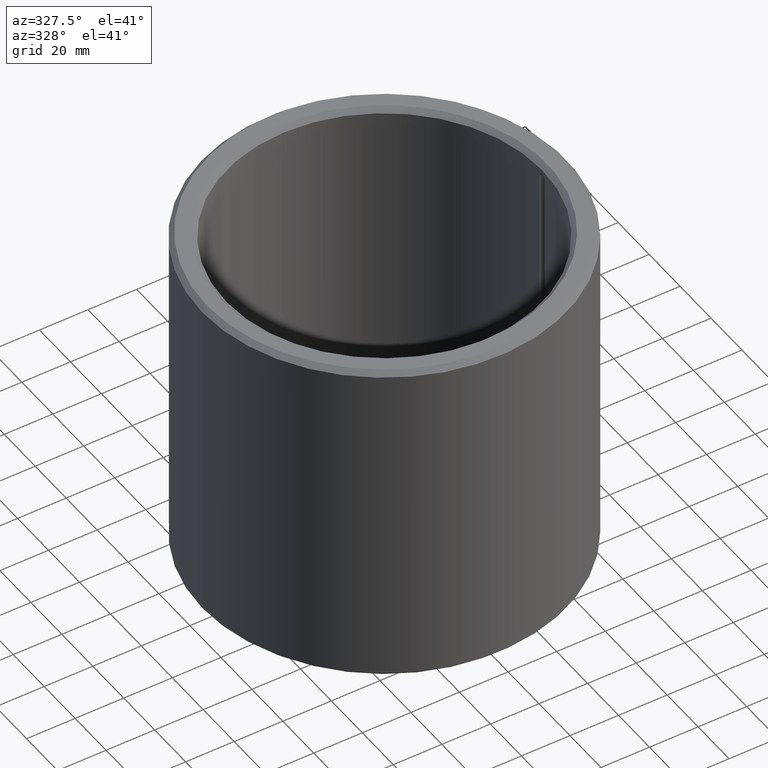
[diagram: clean part render]
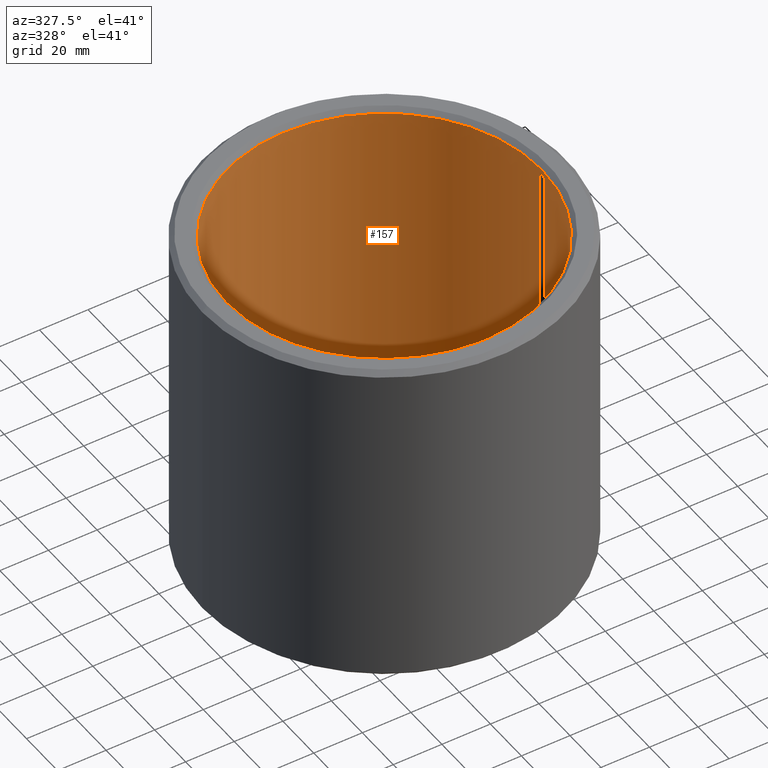
[diagram: same view with one face highlighted and labeled with its STEP entity id]
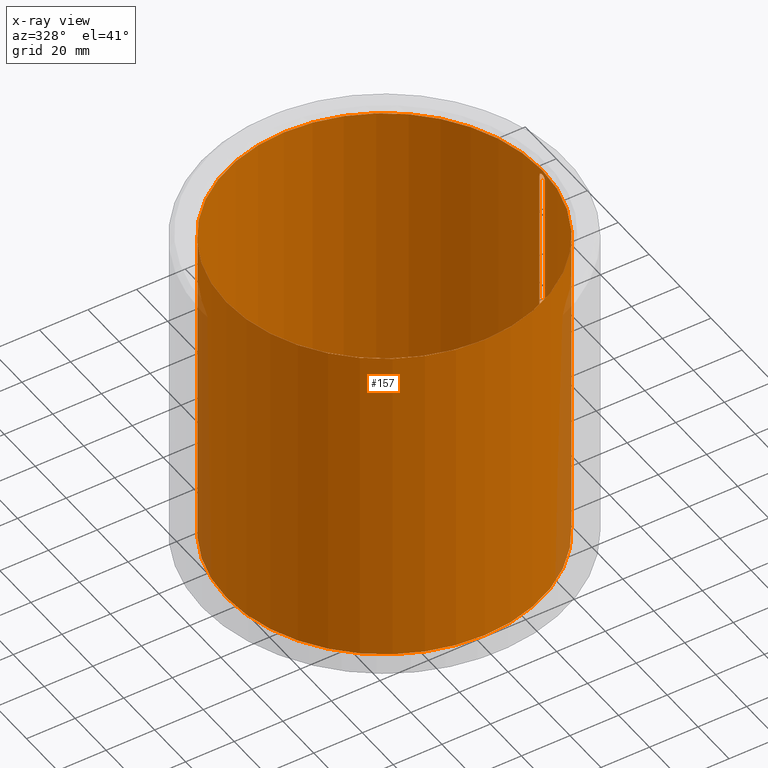
[diagram: x-ray of the same camera — body ghosted, the highlighted face saturated]
A machine part, auxiliary view. The second image highlights one B-rep face of the part: STEP entity #157.
The next image is the same camera in x-ray: the body ghosted, the highlighted face saturated — about 4% of this face is hidden behind the body in this view.
In plain terms, the highlighted cylindrical surface (bore or boss wall) has radius 65 mm, axis along (-0, 0, -1).
Its self-contained STEP definition (entity closure, byte-faithful):
#157=ADVANCED_FACE('',(#176,#177,#178),#179,.F.);
#176=FACE_OUTER_BOUND('',#4061,.T.);
#177=FACE_OUTER_BOUND('',#4062,.T.);
#178=FACE_BOUND('',#4063,.T.);
#179=CYLINDRICAL_SURFACE('',#4064,0.065);
#4061=EDGE_LOOP('',(#7962));
#4062=EDGE_LOOP('',(#7963));
#4063=EDGE_LOOP('',(#7964,#7965,#7966,#7967));
#4064=AXIS2_PLACEMENT_3D('',#7968,#7969,#7970);
#7962=ORIENTED_EDGE('',*,*,#8021,.T.);
#7963=ORIENTED_EDGE('',*,*,#8022,.F.);
#7964=ORIENTED_EDGE('',*,*,#8011,.T.);
#7965=ORIENTED_EDGE('',*,*,#8019,.T.);
#7966=ORIENTED_EDGE('',*,*,#8017,.T.);
#7967=ORIENTED_EDGE('',*,*,#8023,.T.);
#7968=CARTESIAN_POINT('',(0.0,0.0,-1.0842021724855E-019));
#7969=DIRECTION('',(0.0,-6.12323399573677E-017,-1.0));
#7970=DIRECTION('',(0.0,1.0,-6.12323399573677E-017));
#8011=EDGE_CURVE('',#8033,#8031,#8034,.F.);
#8017=EDGE_CURVE('',#8038,#8043,#8045,.T.);
#8019=EDGE_CURVE('',#8031,#8038,#8047,.T.);
#8021=EDGE_CURVE('',#8049,#8049,#8050,.T.);
#8022=EDGE_CURVE('',#8051,#8051,#8052,.T.);
#8023=EDGE_CURVE('',#8043,#8033,#8053,.T.);
#8031=VERTEX_POINT('',#8067);
#8033=VERTEX_POINT('',#8069);
#8034=LINE('',#8070,#8071);
#8038=VERTEX_POINT('',#8076);
#8043=VERTEX_POINT('',#8082);
#8045=LINE('',#8084,#8085);
#8047=B_SPLINE_CURVE_WITH_KNOTS('',3,(#8118,#8119,#8120,#8121,#8122,#8123,#8124,#8125,#8126,#8127,#8128,#8129,#8130,#8131,#8132,#8133,#8134,#8135,#8136,#8137,#8138,#8139,#8140,#8141,#8142,#8143,#8144,#8145,#8146,#8147,#8148,#8149,#8150,#8151,#8152,#8153,#8154,#8155,#8156,#8157,#8158,#8159,#8160,#8161,#8162,#8163,#8164,#8165,#8166,#8167,#8168,#8169,#8170,#8171,#8172,#8173,#8174,#8175,#8176,#8177,#8178,#8179,#8180,#8181,#8182,#8183,#8184,#8185,#8186,#8187,#8188,#8189,#8190,#8191,#8192,#8193,#8194,#8195,#8196,#8197,#8198,#8199,#8200,#8201,#8202,#8203),.UNSPECIFIED.,.F.,.F.,(4,1,1,2,1,2,2,2,1,2,1,2,2,1,1,2,2,2,1,2,1,2,2,2,1,1,1,2,2,2,1,2,1,2,2,2,1,1,1,2,2,1,1,2,1,2,2,2,1,2,1,2,2,4),(0.0,0.000170950541267903,0.000341901082535805,0.000512851623803708,0.000555589259120664,0.000576958076779181,0.000598326894437698,0.000683802165071766,0.000854752706339827,0.00102570324760789,0.00111117851824195,0.00115391615355899,0.00119665378887602,0.00136760433014415,0.00153855487141227,0.0017095054126804,0.00175224304799742,0.00177361186565591,0.0017949806833144,0.0018804559539484,0.00205140649521639,0.00222235703648438,0.00230783230711838,0.00235056994243538,0.00239330757775238,0.00256425811902038,0.00273520866028839,0.0029061592015564,0.0029275280192149,0.0029488968368734,0.00299163447219039,0.0030771097428244,0.00324806028409239,0.00341901082536038,0.00350448609599436,0.00354722373131133,0.0035899613666283,0.00376091190789616,0.00393186244916401,0.00410281299043186,0.00412418180809034,0.00414555062574883,0.00418828826106579,0.00427376353169972,0.00444471407296757,0.00461566461423543,0.00470113988486939,0.00478661515550336,0.00495756569677128,0.00512851623803921,0.00521399150867318,0.0052567291439902,0.00529946677930722,0.0054704173205754),.UNSPECIFIED.);
#8049=VERTEX_POINT('',#8236);
#8050=CIRCLE('',#8237,0.065);
#8051=VERTEX_POINT('',#8238);
#8052=CIRCLE('',#8239,0.065);
#8053=B_SPLINE_CURVE_WITH_KNOTS('',3,(#8240,#8241,#8242,#8243,#8244,#8245,#8246,#8247,#8248,#8249,#8250,#8251,#8252,#8253,#8254,#8255,#8256,#8257,#8258,#8259,#8260,#8261,#8262,#8263,#8264,#8265,#8266,#8267,#8268,#8269,#8270,#8271,#8272,#8273,#8274,#8275,#8276,#8277,#8278,#8279,#8280,#8281,#8282,#8283,#8284,#8285,#8286,#8287,#8288,#8289,#8290,#8291,#8292,#8293,#8294,#8295,#8296,#8297,#8298,#8299,#8300,#8301,#8302,#8303,#8304,#8305,#8306,#8307,#8308,#8309,#8310,#8311,#8312,#8313,#8314,#8315,#8316,#8317,#8318,#8319,#8320,#8321,#8322,#8323,#8324,#8325),.UNSPECIFIED.,.F.,.F.,(4,1,1,2,1,2,2,2,1,2,1,2,2,1,1,2,2,2,1,2,1,2,2,2,1,1,1,2,2,2,1,2,1,2,2,2,1,1,1,2,2,1,1,2,1,2,2,2,1,2,1,2,2,4),(0.0,0.000170950541267997,0.000341901082535994,0.000512851623803992,0.000555589259120992,0.000576958076779491,0.00059832689443799,0.000683802165071988,0.000854752706339985,0.00102570324760798,0.00111117851824198,0.00115391615355898,0.00119665378887598,0.00136760433014397,0.00153855487141196,0.00170950541267995,0.00175224304799694,0.00177361186565544,0.00179498068331394,0.00188045595394794,0.00205140649521593,0.00222235703648392,0.00230783230711791,0.00235056994243491,0.00239330757775191,0.0025642581190199,0.00273520866028789,0.00290615920155587,0.00292752801921437,0.00294889683687287,0.00299163447218987,0.00307710974282386,0.00324806028409185,0.00341901082535984,0.00350448609599384,0.00354722373131084,0.00358996136662783,0.00376091190789582,0.00393186244916381,0.0041028129904318,0.0041241818080903,0.0041455506257488,0.0041882882610658,0.00427376353169979,0.00444471407296779,0.00461566461423578,0.00470113988486978,0.00478661515550377,0.00495756569677177,0.00512851623803976,0.00521399150867376,0.00525672914399076,0.00529946677930776,0.00547041732057575),.UNSPECIFIED.);
#8067=CARTESIAN_POINT('',(0.00175000000000012,-0.0649764380371839,0.13425));
#8069=CARTESIAN_POINT('',(0.00175000000000012,-0.0649764380371839,0.00574999999999992));
#8070=CARTESIAN_POINT('',(0.00175000000000012,-0.0649764380371839,3.87023912586313E-018));
#8071=VECTOR('',#8341,1.0);
#8076=CARTESIAN_POINT('',(-0.0017499999999999,-0.0649764380371839,0.13425));
#8082=CARTESIAN_POINT('',(-0.00174999999999988,-0.0649764380371839,0.00574999999999992));
#8084=CARTESIAN_POINT('',(-0.00174999999999988,-0.0649764380371839,3.66352353655657E-018));
#8085=VECTOR('',#8353,1.0);
#8118=CARTESIAN_POINT('',(0.00175000000000012,-0.0649764380371839,0.13425));
#8119=CARTESIAN_POINT('',(0.00175000000000012,-0.0649764380371839,0.134307804159339));
#8120=CARTESIAN_POINT('',(0.00174428743809363,-0.0649765922552417,0.134422439136629));
#8121=CARTESIAN_POINT('',(0.00171917428364053,-0.0649772636644307,0.134591572710331));
#8122=CARTESIAN_POINT('',(0.00169147204567427,-0.064977990118524,0.134702461046921));
#8123=CARTESIAN_POINT('',(0.00167065513377193,-0.0649785266743504,0.134771169446072));
#8124=CARTESIAN_POINT('',(0.00166414672759982,-0.0649786938291389,0.134791737101696));
#8125=CARTESIAN_POINT('',(0.00165723924504243,-0.0649788701317372,0.134812236767478));
#8126=CARTESIAN_POINT('',(0.00165254503619001,-0.0649789896844806,0.134825888011142));
#8127=CARTESIAN_POINT('',(0.00165015203516632,-0.0649790505022662,0.134832709494912));
#8128=CARTESIAN_POINT('',(0.00163799532301936,-0.0649793587684997,0.134866688605165));
#8129=CARTESIAN_POINT('',(0.00162763716400036,-0.0649796192498494,0.134893521128272));
#8130=CARTESIAN_POINT('',(0.00159470289670722,-0.064980438633818,0.134972987822788));
#8131=CARTESIAN_POINT('',(0.00154584003328627,-0.0649816322581862,0.135076199366304));
#8132=CARTESIAN_POINT('',(0.00148726104018802,-0.0649829905644828,0.135174025726698));
#8133=CARTESIAN_POINT('',(0.00143964697059824,-0.0649840570342171,0.135245356135442));
#8134=CARTESIAN_POINT('',(0.00141491835255628,-0.0649846022016593,0.135280510598014));
#8135=CARTESIAN_POINT('',(0.00138878518364405,-0.0649851625712121,0.135314886696329));
#8136=CARTESIAN_POINT('',(0.00137104734742398,-0.0649855392211552,0.135337629134149));
#8137=CARTESIAN_POINT('',(0.00136201095357335,-0.0649857292785578,0.135348924064095));
#8138=CARTESIAN_POINT('',(0.00131627601218144,-0.0649866813794813,0.135404662046035));
#8139=CARTESIAN_POINT('',(0.00123927067599368,-0.0649882227009657,0.135489542226885));
#8140=CARTESIAN_POINT('',(0.00111262966757342,-0.0649905213887287,0.135604361024964));
#8141=CARTESIAN_POINT('',(0.00102079972565584,-0.0649920014671348,0.135672595222445));
#8142=CARTESIAN_POINT('',(0.000961031010528847,-0.0649928962450574,0.135712575203102));
#8143=CARTESIAN_POINT('',(0.000948958239967099,-0.0649930736845278,0.135720437568068));
#8144=CARTESIAN_POINT('',(0.000930668522969631,-0.064993337299113,0.135732028405953));
#8145=CARTESIAN_POINT('',(0.000924538816368255,-0.0649934247884149,0.135735860042414));
#8146=CARTESIAN_POINT('',(0.000912251787006206,-0.0649935984111313,0.135743435223141));
#8147=CARTESIAN_POINT('',(0.000881448111662868,-0.0649940293283734,0.135762163889215));
#8148=CARTESIAN_POINT('',(0.000850216884515415,-0.0649944441402128,0.135779853328885));
#8149=CARTESIAN_POINT('',(0.000774456150257302,-0.0649954057534464,0.135820349485238));
#8150=CARTESIAN_POINT('',(0.000671296879820094,-0.0649965973664716,0.13586913096906));
#8151=CARTESIAN_POINT('',(0.000563911996975498,-0.0649975768969099,0.135907642790467));
#8152=CARTESIAN_POINT('',(0.000481766951125887,-0.0649982203633862,0.135932622861809));
#8153=CARTESIAN_POINT('',(0.000454117064391369,-0.0649984196532039,0.135940297766891));
#8154=CARTESIAN_POINT('',(0.000412232706031982,-0.0649986942878595,0.135950814924767));
#8155=CARTESIAN_POINT('',(0.000398202120363332,-0.0649987817872864,0.135954154888466));
#8156=CARTESIAN_POINT('',(0.000370006163583729,-0.0649989484084077,0.135960498246551));
#8157=CARTESIAN_POINT('',(0.000299468254483249,-0.0649993423112207,0.135975448623836));
#8158=CARTESIAN_POINT('',(0.000172074641729448,-0.0649998465968027,0.135994315423633));
#8159=CARTESIAN_POINT('',(1.33397341045978E-006,-0.0650000751188021,0.13600278322256));
#8160=CARTESIAN_POINT('',(-0.000113082006801493,-0.0649999269431506,0.135997293364273));
#8161=CARTESIAN_POINT('',(-0.000177611643527828,-0.064999757734262,0.135990978461879));
#8162=CARTESIAN_POINT('',(-0.000184783979187403,-0.0649997377406877,0.135990231876687));
#8163=CARTESIAN_POINT('',(-0.000199133430442034,-0.0649996953635478,0.135988648319955));
#8164=CARTESIAN_POINT('',(-0.000206314028814074,-0.064999672967197,0.135987810869236));
#8165=CARTESIAN_POINT('',(-0.000227805524533115,-0.0649996023828389,0.13598516945163));
#8166=CARTESIAN_POINT('',(-0.000270635998836784,-0.0649994475027369,0.135979365411318));
#8167=CARTESIAN_POINT('',(-0.000313014352686587,-0.0649992523733915,0.135972016305078));
#8168=CARTESIAN_POINT('',(-0.000397178290813525,-0.0649988107410024,0.135955292340063));
#8169=CARTESIAN_POINT('',(-0.000507818925823188,-0.0649980849309796,0.135927601183919));
#8170=CARTESIAN_POINT('',(-0.000615340422131647,-0.0649971088743292,0.135889250056923));
#8171=CARTESIAN_POINT('',(-0.000694791726562403,-0.0649962919397778,0.135856420120254));
#8172=CARTESIAN_POINT('',(-0.000721076839261189,-0.0649960054817231,0.135844797837391));
#8173=CARTESIAN_POINT('',(-0.000760200635025422,-0.0649955557333852,0.135826325785513));
#8174=CARTESIAN_POINT('',(-0.000773203820355024,-0.0649954023132208,0.135819988467953));
#8175=CARTESIAN_POINT('',(-0.000798970539962756,-0.0649950906767697,0.135807033722688));
#8176=CARTESIAN_POINT('',(-0.000862860879895444,-0.0649942987787319,0.135773912433346));
#8177=CARTESIAN_POINT('',(-0.000973195060078891,-0.0649927660094061,0.135707781376536));
#8178=CARTESIAN_POINT('',(-0.0011105872686655,-0.0649905566210504,0.135606045372333));
#8179=CARTESIAN_POINT('',(-0.00119567359744731,-0.0649890147242563,0.135529139921372));
#8180=CARTESIAN_POINT('',(-0.00124164160953185,-0.0649881400888659,0.135483238911064));
#8181=CARTESIAN_POINT('',(-0.00124672498238361,-0.0649880427637438,0.135478099711173));
#8182=CARTESIAN_POINT('',(-0.00125681149956204,-0.064987848481839,0.135467775404929));
#8183=CARTESIAN_POINT('',(-0.00127183017883272,-0.064987557436926,0.135452211008358));
#8184=CARTESIAN_POINT('',(-0.00130610062115463,-0.0649868814282194,0.135415351695388));
#8185=CARTESIAN_POINT('',(-0.00133416416110713,-0.0649863088273954,0.135382838172676));
#8186=CARTESIAN_POINT('',(-0.0013885689759628,-0.064985176711867,0.135316602801425));
#8187=CARTESIAN_POINT('',(-0.0014565239862244,-0.0649837021643201,0.13522507235672));
#8188=CARTESIAN_POINT('',(-0.00151538279762509,-0.0649823387560253,0.1351271594592));
#8189=CARTESIAN_POINT('',(-0.00155604392506773,-0.0649813735705071,0.135051280686345));
#8190=CARTESIAN_POINT('',(-0.00156901798788923,-0.0649810613626072,0.135025575694947));
#8191=CARTESIAN_POINT('',(-0.00159377008135847,-0.0649804589871833,0.134973347795102));
#8192=CARTESIAN_POINT('',(-0.00160544773072877,-0.0649801712719156,0.13494703720537));
#8193=CARTESIAN_POINT('',(-0.00163842983379581,-0.0649793508081919,0.134867527980593));
#8194=CARTESIAN_POINT('',(-0.00167694696870958,-0.06497837071468,0.134759978590079));
#8195=CARTESIAN_POINT('',(-0.00170476748346969,-0.064977641490491,0.134649417153528));
#8196=CARTESIAN_POINT('',(-0.00172158834806623,-0.0649771972696551,0.13456535712868));
#8197=CARTESIAN_POINT('',(-0.00172898586286726,-0.0649770008347132,0.134523041876456));
#8198=CARTESIAN_POINT('',(-0.00173484094036978,-0.0649768445684816,0.134480292262785));
#8199=CARTESIAN_POINT('',(-0.00173839776005141,-0.0649767495062107,0.134451694924403));
#8200=CARTESIAN_POINT('',(-0.00174000413889888,-0.0649767065003808,0.134437334701522));
#8201=CARTESIAN_POINT('',(-0.00174714302346269,-0.0649765151719892,0.134365457161068));
#8202=CARTESIAN_POINT('',(-0.0017499999999999,-0.0649764380371839,0.1343078041473));
#8203=CARTESIAN_POINT('',(-0.0017499999999999,-0.0649764380371839,0.13425));
#8236=CARTESIAN_POINT('',(0.0,0.065,0.002));
#8237=AXIS2_PLACEMENT_3D('',#8354,#8355,#8356);
#8238=CARTESIAN_POINT('',(0.0,0.065,0.138));
#8239=AXIS2_PLACEMENT_3D('',#8357,#8358,#8359);
#8240=CARTESIAN_POINT('',(-0.00174999999999988,-0.0649764380371839,0.00574999999999992));
#8241=CARTESIAN_POINT('',(-0.00174999999999989,-0.0649764380371839,0.00569219584066064));
#8242=CARTESIAN_POINT('',(-0.00174428743809343,-0.0649765922552417,0.0055775608633707));
#8243=CARTESIAN_POINT('',(-0.00171917428364035,-0.0649772636644307,0.00540842728966926));
#8244=CARTESIAN_POINT('',(-0.0016914720456741,-0.064977990118524,0.00529753895307839));
#8245=CARTESIAN_POINT('',(-0.00167065513377177,-0.0649785266743504,0.00522883055392761));
#8246=CARTESIAN_POINT('',(-0.00166414672759966,-0.0649786938291389,0.00520826289830435));
#8247=CARTESIAN_POINT('',(-0.00165723924504227,-0.0649788701317372,0.00518776323252184));
#8248=CARTESIAN_POINT('',(-0.00165254503618985,-0.0649789896844806,0.0051741119888582));
#8249=CARTESIAN_POINT('',(-0.00165015203516616,-0.0649790505022662,0.00516729050508823));
#8250=CARTESIAN_POINT('',(-0.0016379953230192,-0.0649793587684997,0.00513331139483454));
#8251=CARTESIAN_POINT('',(-0.0016276371640002,-0.0649796192498495,0.00510647887172832));
#8252=CARTESIAN_POINT('',(-0.00159470289670707,-0.064980438633818,0.00502701217721135));
#8253=CARTESIAN_POINT('',(-0.00154583992791787,-0.0649816322881522,0.00492380069245907));
#8254=CARTESIAN_POINT('',(-0.00148726104018787,-0.0649829905644829,0.00482597427330222));
#8255=CARTESIAN_POINT('',(-0.0014396469705981,-0.0649840570342171,0.00475464386455751));
#8256=CARTESIAN_POINT('',(-0.00141491835255614,-0.0649846022016593,0.00471948940198536));
#8257=CARTESIAN_POINT('',(-0.00138878518364393,-0.0649851625712121,0.00468511330367057));
#8258=CARTESIAN_POINT('',(-0.00137104734742386,-0.0649855392211552,0.00466237086585071));
#8259=CARTESIAN_POINT('',(-0.00136201095357319,-0.0649857292785578,0.00465107593590511));
#8260=CARTESIAN_POINT('',(-0.00131627601218129,-0.0649866813794813,0.00459533795396519));
#8261=CARTESIAN_POINT('',(-0.00123927067599351,-0.0649882227009658,0.00451045777311442));
#8262=CARTESIAN_POINT('',(-0.00111262966757329,-0.0649905213887288,0.00439563897503565));
#8263=CARTESIAN_POINT('',(-0.00102079972565571,-0.0649920014671348,0.00432740477755438));
#8264=CARTESIAN_POINT('',(-0.000961031010528725,-0.0649928962450574,0.00428742479689784));
#8265=CARTESIAN_POINT('',(-0.000948958239966973,-0.0649930736845278,0.00427956243193173));
#8266=CARTESIAN_POINT('',(-0.000930668522969507,-0.064993337299113,0.00426797159404711));
#8267=CARTESIAN_POINT('',(-0.000924538816368064,-0.0649934247884149,0.00426413995758588));
#8268=CARTESIAN_POINT('',(-0.000912251787006016,-0.0649935984111313,0.0042565647768589));
#8269=CARTESIAN_POINT('',(-0.000881448111662694,-0.0649940293283735,0.00423783611078492));
#8270=CARTESIAN_POINT('',(-0.00085021688451523,-0.0649944441402128,0.00422014667111484));
#8271=CARTESIAN_POINT('',(-0.000774456150257124,-0.0649954057534464,0.00417965051476123));
#8272=CARTESIAN_POINT('',(-0.000671296879819924,-0.0649965973664716,0.00413086903094004));
#8273=CARTESIAN_POINT('',(-0.000563911996975337,-0.0649975768969099,0.00409235720953244));
#8274=CARTESIAN_POINT('',(-0.000481766951125731,-0.0649982203633862,0.00406737713819043));
#8275=CARTESIAN_POINT('',(-0.000454117064391216,-0.0649984196532039,0.0040597022331091));
#8276=CARTESIAN_POINT('',(-0.000412232706031832,-0.0649986942878595,0.00404918507523295));
#8277=CARTESIAN_POINT('',(-0.000398202120363095,-0.0649987817872864,0.00404584511153417));
#8278=CARTESIAN_POINT('',(-0.000370006163583494,-0.0649989484084077,0.00403950175344904));
#8279=CARTESIAN_POINT('',(-0.00029946825448302,-0.0649993423112207,0.00402455137616388));
#8280=CARTESIAN_POINT('',(-0.000172074641729223,-0.0649998465968028,0.00400568457636647));
#8281=CARTESIAN_POINT('',(-1.33397341024243E-006,-0.0650000751188021,0.00399721677743911));
#8282=CARTESIAN_POINT('',(0.000113082006801707,-0.0649999269431506,0.00400270663572718));
#8283=CARTESIAN_POINT('',(0.000177611643528041,-0.064999757734262,0.00400902153812101));
#8284=CARTESIAN_POINT('',(0.000184783979187614,-0.0649997377406876,0.00400976812331299));
#8285=CARTESIAN_POINT('',(0.000199133430442245,-0.0649996953635478,0.00401135168004501));
#8286=CARTESIAN_POINT('',(0.000206314028814349,-0.064999672967197,0.00401218913076392));
#8287=CARTESIAN_POINT('',(0.00022780552453339,-0.0649996023828389,0.00401483054836966));
#8288=CARTESIAN_POINT('',(0.000270635998837065,-0.0649994475027369,0.00402063458868158));
#8289=CARTESIAN_POINT('',(0.000313014352686858,-0.0649992523733916,0.0040279836949215));
#8290=CARTESIAN_POINT('',(0.000397178290813793,-0.0649988107410024,0.00404470765993646));
#8291=CARTESIAN_POINT('',(0.000507818946458233,-0.0649980849119371,0.00407239874503191));
#8292=CARTESIAN_POINT('',(0.000615340422131912,-0.0649971088743292,0.00411074994307711));
#8293=CARTESIAN_POINT('',(0.000694791726562666,-0.0649962919397778,0.0041435798797454));
#8294=CARTESIAN_POINT('',(0.000721076839261453,-0.0649960054817231,0.00415520216260912));
#8295=CARTESIAN_POINT('',(0.000760200635025683,-0.0649955557333852,0.00417367421448676));
#8296=CARTESIAN_POINT('',(0.00077320382035535,-0.0649954023132208,0.00418001153204708));
#8297=CARTESIAN_POINT('',(0.000798970539963081,-0.0649950906767697,0.00419296627731177));
#8298=CARTESIAN_POINT('',(0.00086286087989576,-0.0649942987787319,0.00422608756665392));
#8299=CARTESIAN_POINT('',(0.000973195060079187,-0.0649927660094062,0.00429221862346408));
#8300=CARTESIAN_POINT('',(0.00111058726866581,-0.0649905566210504,0.00439395462766714));
#8301=CARTESIAN_POINT('',(0.00119567359744761,-0.0649890147242563,0.00447086007862797));
#8302=CARTESIAN_POINT('',(0.00124164160953215,-0.0649881400888659,0.00451676108893613));
#8303=CARTESIAN_POINT('',(0.00124672498238394,-0.0649880427637438,0.00452190028882711));
#8304=CARTESIAN_POINT('',(0.00125681149956237,-0.064987848481839,0.00453222459507061));
#8305=CARTESIAN_POINT('',(0.00127183017883303,-0.064987557436926,0.00454778899164181));
#8306=CARTESIAN_POINT('',(0.00130610062115495,-0.0649868814282195,0.00458464830461173));
#8307=CARTESIAN_POINT('',(0.00133416416110744,-0.0649863088273954,0.00461716182732425));
#8308=CARTESIAN_POINT('',(0.00138856897596311,-0.064985176711867,0.00468339719857439));
#8309=CARTESIAN_POINT('',(0.00145652412823634,-0.06498370213099,0.00477492754315365));
#8310=CARTESIAN_POINT('',(0.00151538279762539,-0.0649823387560253,0.00487284054079995));
#8311=CARTESIAN_POINT('',(0.00155604392506802,-0.0649813735705071,0.00494871931365449));
#8312=CARTESIAN_POINT('',(0.00156901798788954,-0.0649810613626072,0.00497442430505252));
#8313=CARTESIAN_POINT('',(0.00159377008135878,-0.0649804589871833,0.00502665220489738));
#8314=CARTESIAN_POINT('',(0.00160544773072908,-0.0649801712719156,0.00505296279463028));
#8315=CARTESIAN_POINT('',(0.00163842983379611,-0.064979350808192,0.00513247201940693));
#8316=CARTESIAN_POINT('',(0.00167694680970454,-0.0649783706962203,0.00524002145453485));
#8317=CARTESIAN_POINT('',(0.00170476748346996,-0.064977641490491,0.00535058284647222));
#8318=CARTESIAN_POINT('',(0.0017215883480665,-0.0649771972696551,0.00543464287131999));
#8319=CARTESIAN_POINT('',(0.00172898586286752,-0.0649770008347132,0.00547695812354423));
#8320=CARTESIAN_POINT('',(0.00173484094037003,-0.0649768445684816,0.0055197077372147));
#8321=CARTESIAN_POINT('',(0.00173839776005167,-0.0649767495062107,0.00554830507559663));
#8322=CARTESIAN_POINT('',(0.00174000413889913,-0.0649767065003808,0.00556266529847835));
#8323=CARTESIAN_POINT('',(0.00174714302346294,-0.0649765151719892,0.00563454283893241));
#8324=CARTESIAN_POINT('',(0.00175000000000013,-0.0649764380371839,0.0056921958527004));
#8325=CARTESIAN_POINT('',(0.00175000000000012,-0.0649764380371839,0.00574999999999992));
#8341=DIRECTION('',(0.0,-6.12323399573677E-017,-1.0));
#8353=DIRECTION('',(0.0,-6.12323399573677E-017,-1.0));
#8354=CARTESIAN_POINT('',(0.0,0.0,0.002));
#8355=DIRECTION('',(0.0,-6.12323399573677E-017,-1.0));
#8356=DIRECTION('',(0.0,1.0,-6.12323399573677E-017));
#8357=CARTESIAN_POINT('',(0.0,6.93889390390723E-018,0.138));
#8358=DIRECTION('',(0.0,-6.12323399573677E-017,-1.0));
#8359=DIRECTION('',(0.0,1.0,-6.12323399573677E-017));